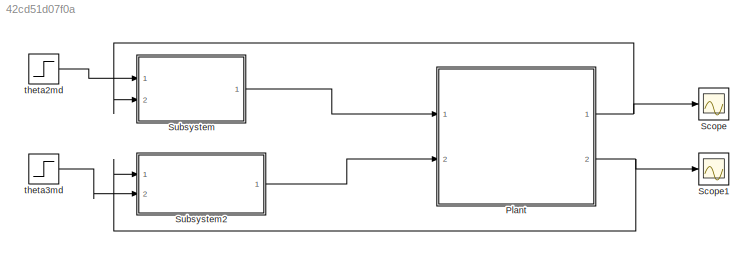
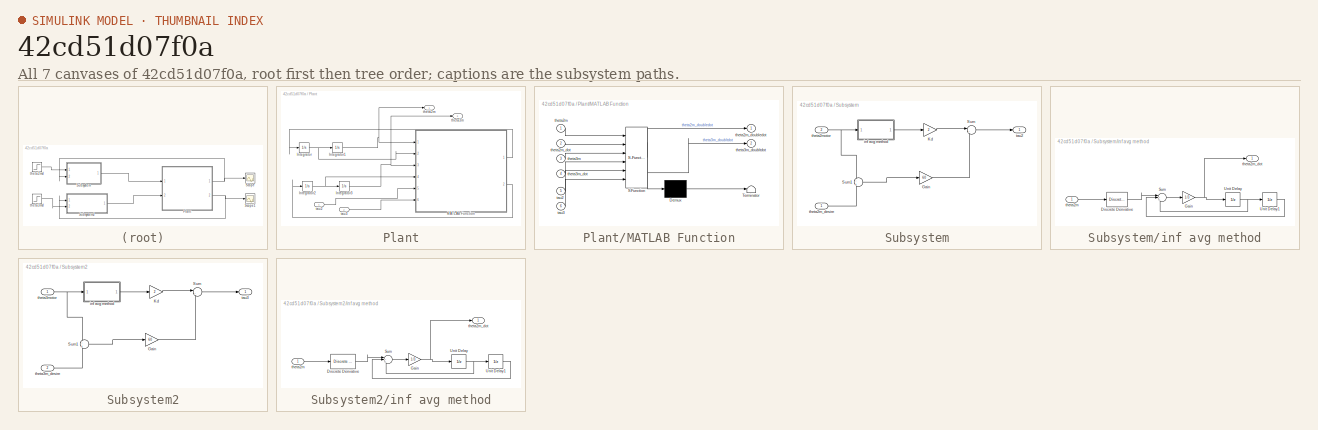
[diagram: thumbnail index - all 7 canvases of the model, root first then tree order]
MODEL slx_42cd51d07f0a
KIND model
CONFIG AbsTol = auto
CONFIG EnableMultiTasking = off
CONFIG FixedStep = auto
CONFIG MaxStep = auto
CONFIG MinStep = auto
CONFIG RelTol = 1e-3
CONFIG SampleTimeConstraint = Unconstrained
CONFIG Solver = VariableStepAuto
CONFIG SolverName = VariableStepAuto
CONFIG StartTime = 0.0
CONFIG StopTime = 10.0
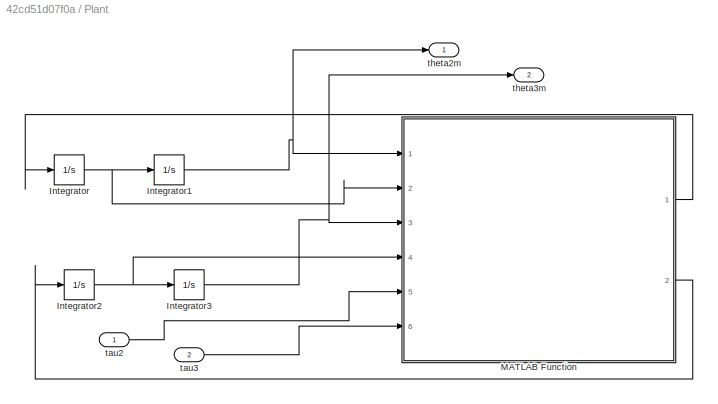
BLOCK [SubSystem] Plant
  Ports = [2, 2]
  RequestExecContextInheritance = off
BLOCK [Integrator] Plant/Integrator
  Ports = [1, 1]
BLOCK [Integrator] Plant/Integrator1
  Ports = [1, 1]
BLOCK [Integrator] Plant/Integrator2
  Ports = [1, 1]
BLOCK [Integrator] Plant/Integrator3
  Ports = [1, 1]
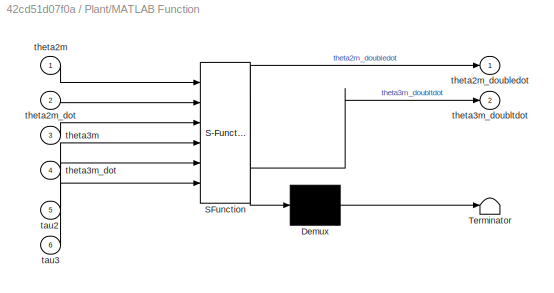
BLOCK [SubSystem] Plant/MATLAB Function
  ErrorFcn = Stateflow.Translate.translate
  PermitHierarchicalResolution = ExplicitOnly
  Ports = [6, 2]
  RequestExecContextInheritance = off
  SFBlockType = MATLAB Function
  TreatAsAtomicUnit = on
BLOCK [Demux] Plant/MATLAB Function/ Demux 
  Outputs = 1
  Ports = [1, 1]
BLOCK [S-Function] Plant/MATLAB Function/ SFunction 
  EnableBusSupport = on
  FunctionName = sf_sfun
  PortCounts = [6 3]
  Ports = [6, 3]
  SFcnIsStateOwnerBlock = off
  SFunctionDeploymentMode = off
  Tag = Stateflow S-Function 2
BLOCK [Terminator] Plant/MATLAB Function/ Terminator 
BLOCK [Inport] Plant/MATLAB Function/tau2
  Port = 5
BLOCK [Inport] Plant/MATLAB Function/tau3
  Port = 6
BLOCK [Inport] Plant/MATLAB Function/theta2m
BLOCK [Inport] Plant/MATLAB Function/theta2m_dot
  Port = 2
BLOCK [Outport] Plant/MATLAB Function/theta2m_doubledot
BLOCK [Inport] Plant/MATLAB Function/theta3m
  Port = 3
BLOCK [Inport] Plant/MATLAB Function/theta3m_dot
  Port = 4
BLOCK [Outport] Plant/MATLAB Function/theta3m_doubltdot
  Port = 2
BLOCK [Inport] Plant/tau2
BLOCK [Inport] Plant/tau3
  Port = 2
BLOCK [Outport] Plant/theta2m
BLOCK [Outport] Plant/theta3m
  Port = 2
BLOCK [Scope] Scope
  Floating = off
  NumInputPorts = 1
  Ports = [1]
  ScopeSpecificationString = Simulink.scopes.TimeScopeBlockCfg('CurrentConfiguration', extmgr.ConfigurationSet(extmgr.Configuration('Core','General UI',true),extmgr.Configuration('Core','Source UI',true),extmgr.Configuration('Sources','WiredSimulink',true),extmgr.Configuration('Visuals','Time Domain',true,'SerializedDisplays',{struct('MinYLimReal','-0.21003','MaxYLimReal','1.19421','YLabelReal','','MinYLimMag','0.00000','MaxY...<+1356ch>
BLOCK [Scope] Scope1
  Floating = off
  NumInputPorts = 1
  Ports = [1]
  ScopeSpecificationString = Simulink.scopes.TimeScopeBlockCfg('CurrentConfiguration', extmgr.ConfigurationSet(extmgr.Configuration('Core','General UI',true),extmgr.Configuration('Core','Source UI',true),extmgr.Configuration('Sources','WiredSimulink',true,'DataLoggingVariableName','ScopeData1'),extmgr.Configuration('Visuals','Time Domain',true,'SerializedDisplays',{struct('MinYLimReal','-0.10911','MaxYLimReal','0.982','YLabel...<+1387ch>
BLOCK [SubSystem] Subsystem
  Ports = [2, 1]
  RequestExecContextInheritance = off
BLOCK [Gain] Subsystem/Gain
  Gain = 60
BLOCK [Gain] Subsystem/Kd
  Gain = 2
BLOCK [Sum] Subsystem/Sum
  Inputs = |-+
  Ports = [2, 1]
BLOCK [Sum] Subsystem/Sum1
  Inputs = -|+
  Ports = [2, 1]
BLOCK [SubSystem] Subsystem/inf avg method
  Ports = [1, 1]
  RequestExecContextInheritance = off
BLOCK [Reference] Subsystem/inf avg method/Discrete Derivative  REF=simulink/Discrete/Discrete Derivative
  Ports = [1, 1]
  SourceBlock = simulink/Discrete/Discrete Derivative
  SourceProductBaseCode = SL
  SourceType = Discrete Derivative
BLOCK [Gain] Subsystem/inf avg method/Gain
  Gain = 1/3
BLOCK [Sum] Subsystem/inf avg method/Sum
  Inputs = |+++
  Ports = [3, 1]
BLOCK [UnitDelay] Subsystem/inf avg method/Unit Delay
  HasFrameUpgradeWarning = on
  SampleTime = -1
BLOCK [UnitDelay] Subsystem/inf avg method/Unit Delay1
  HasFrameUpgradeWarning = on
  SampleTime = -1
BLOCK [Inport] Subsystem/inf avg method/theta2m
BLOCK [Outport] Subsystem/inf avg method/theta2m_dot
BLOCK [Outport] Subsystem/tau2
BLOCK [Inport] Subsystem/theta2m_desire
BLOCK [Inport] Subsystem/theta2motor
  Port = 2
BLOCK [SubSystem] Subsystem2
  Ports = [2, 1]
  RequestExecContextInheritance = off
BLOCK [Gain] Subsystem2/Gain
  Gain = 60
BLOCK [Gain] Subsystem2/Kd
  Gain = 2
BLOCK [Sum] Subsystem2/Sum
  Inputs = |-+
  Ports = [2, 1]
BLOCK [Sum] Subsystem2/Sum1
  Inputs = -|+
  Ports = [2, 1]
BLOCK [SubSystem] Subsystem2/inf avg method
  Ports = [1, 1]
  RequestExecContextInheritance = off
BLOCK [Reference] Subsystem2/inf avg method/Discrete Derivative  REF=simulink/Discrete/Discrete Derivative
  Ports = [1, 1]
  SourceBlock = simulink/Discrete/Discrete Derivative
  SourceProductBaseCode = SL
  SourceType = Discrete Derivative
BLOCK [Gain] Subsystem2/inf avg method/Gain
  Gain = 1/3
BLOCK [Sum] Subsystem2/inf avg method/Sum
  Inputs = |+++
  Ports = [3, 1]
BLOCK [UnitDelay] Subsystem2/inf avg method/Unit Delay
  HasFrameUpgradeWarning = on
  SampleTime = -1
BLOCK [UnitDelay] Subsystem2/inf avg method/Unit Delay1
  HasFrameUpgradeWarning = on
  SampleTime = -1
BLOCK [Inport] Subsystem2/inf avg method/theta2m
BLOCK [Outport] Subsystem2/inf avg method/theta2m_dot
BLOCK [Outport] Subsystem2/tau3
BLOCK [Inport] Subsystem2/theta3m_desire
  Port = 2
BLOCK [Inport] Subsystem2/theta3motor
BLOCK [Step] theta2md
  After = 0.5
  SampleTime = 0
BLOCK [Step] theta3md
  After = 0.5
  SampleTime = 0
NET Plant/Integrator1:1 -> Plant/MATLAB Function:1, Plant/theta2m:1
NET Plant/Integrator2:1 -> Plant/Integrator3:1, Plant/MATLAB Function:4
NET Plant/Integrator3:1 -> Plant/MATLAB Function:3, Plant/theta3m:1
NET Plant/Integrator:1 -> Plant/Integrator1:1, Plant/MATLAB Function:2
LINE Plant/MATLAB Function:1 -> Plant/Integrator:1
LINE Plant/MATLAB Function:2 -> Plant/Integrator2:1
LINE Plant/tau2:1 -> Plant/MATLAB Function:5
LINE Plant/tau3:1 -> Plant/MATLAB Function:6
NET Plant:1 -> Scope:1, Subsystem:2
NET Plant:2 -> Scope1:1, Subsystem2:1
LINE Subsystem/Gain:1 -> Subsystem/Sum:2
LINE Subsystem/Kd:1 -> Subsystem/Sum:1
LINE Subsystem/Sum1:1 -> Subsystem/Gain:1
LINE Subsystem/Sum:1 -> Subsystem/tau2:1
LINE Subsystem/inf avg method/Discrete Derivative:1 -> Subsystem/inf avg method/Sum:1
NET Subsystem/inf avg method/Gain:1 -> Subsystem/inf avg method/Unit Delay:1, Subsystem/inf avg method/theta2m_dot:1
LINE Subsystem/inf avg method/Sum:1 -> Subsystem/inf avg method/Gain:1
LINE Subsystem/inf avg method/Unit Delay1:1 -> Subsystem/inf avg method/Sum:2
NET Subsystem/inf avg method/Unit Delay:1 -> Subsystem/inf avg method/Sum:3, Subsystem/inf avg method/Unit Delay1:1
LINE Subsystem/inf avg method/theta2m:1 -> Subsystem/inf avg method/Discrete Derivative:1
LINE Subsystem/inf avg method:1 -> Subsystem/Kd:1
LINE Subsystem/theta2m_desire:1 -> Subsystem/Sum1:2
NET Subsystem/theta2motor:1 -> Subsystem/Sum1:1, Subsystem/inf avg method:1
LINE Subsystem2/Gain:1 -> Subsystem2/Sum:2
LINE Subsystem2/Kd:1 -> Subsystem2/Sum:1
LINE Subsystem2/Sum1:1 -> Subsystem2/Gain:1
LINE Subsystem2/Sum:1 -> Subsystem2/tau3:1
LINE Subsystem2/inf avg method/Discrete Derivative:1 -> Subsystem2/inf avg method/Sum:1
NET Subsystem2/inf avg method/Gain:1 -> Subsystem2/inf avg method/Unit Delay:1, Subsystem2/inf avg method/theta2m_dot:1
LINE Subsystem2/inf avg method/Sum:1 -> Subsystem2/inf avg method/Gain:1
LINE Subsystem2/inf avg method/Unit Delay1:1 -> Subsystem2/inf avg method/Sum:2
NET Subsystem2/inf avg method/Unit Delay:1 -> Subsystem2/inf avg method/Sum:3, Subsystem2/inf avg method/Unit Delay1:1
LINE Subsystem2/inf avg method/theta2m:1 -> Subsystem2/inf avg method/Discrete Derivative:1
LINE Subsystem2/inf avg method:1 -> Subsystem2/Kd:1
LINE Subsystem2/theta3m_desire:1 -> Subsystem2/Sum1:2
NET Subsystem2/theta3motor:1 -> Subsystem2/Sum1:1, Subsystem2/inf avg method:1
LINE Subsystem2:1 -> Plant:2
LINE Subsystem:1 -> Plant:1
LINE theta2md:1 -> Subsystem:1
LINE theta3md:1 -> Subsystem2:2
note: NET lines group one-source signal fan-out (src -> all destinations, sorted); 1:1 wires keep LINE
CHART Plant/MATLAB Function states=1 transitions=1
  STATE_LABEL 'eML_blk_kernel()'
  STATE_LABEL 'SCRIPT:\nfunction [theta2m_doubledot, theta3m_doubltdot]  = fcn(theta2m, theta2m_dot, theta3m, theta3m_dot,tau2, tau3)\np = [0.03;0.0128;0.0076;0.0753;0.0298];\np1=p(1);\np2=p(2);\np3=p(3);\np4=p(4);\np5=p(5);\ng=9.81;\nFic = [-0.04*theta2m_dot; -0.037*theta3m_dot];\ntau = [tau2;tau3];\nD = [p1 -p3*sin(theta3m - theta2m); -p3*sin(theta3m-theta2m) p2];\nC = [0 -p3*cos(theta3m - theta2m)*theta3m_dot;\n    p3*cos...<+219ch>'
CHART  states=0 transitions=0
